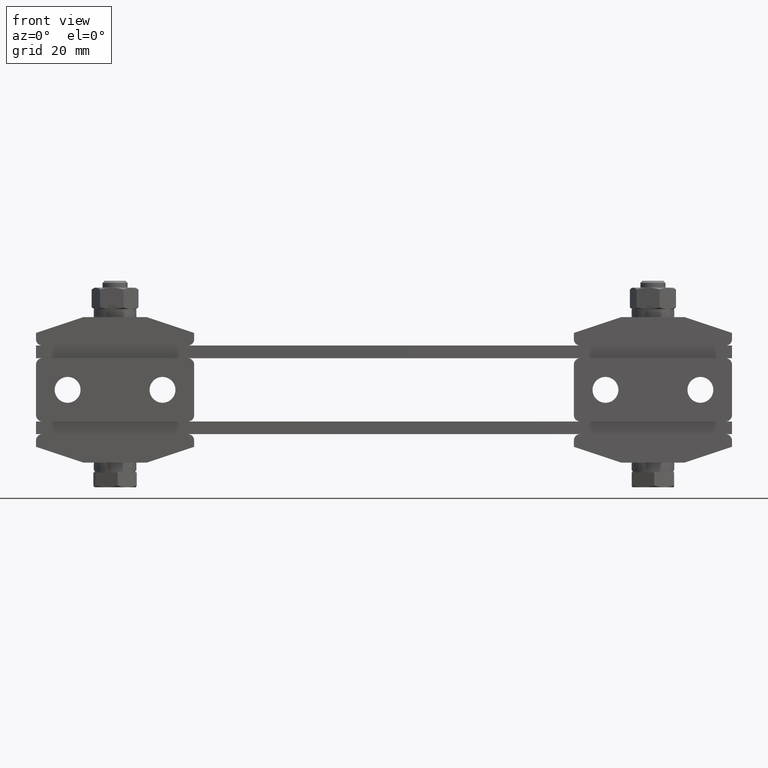
[diagram: clean part render]
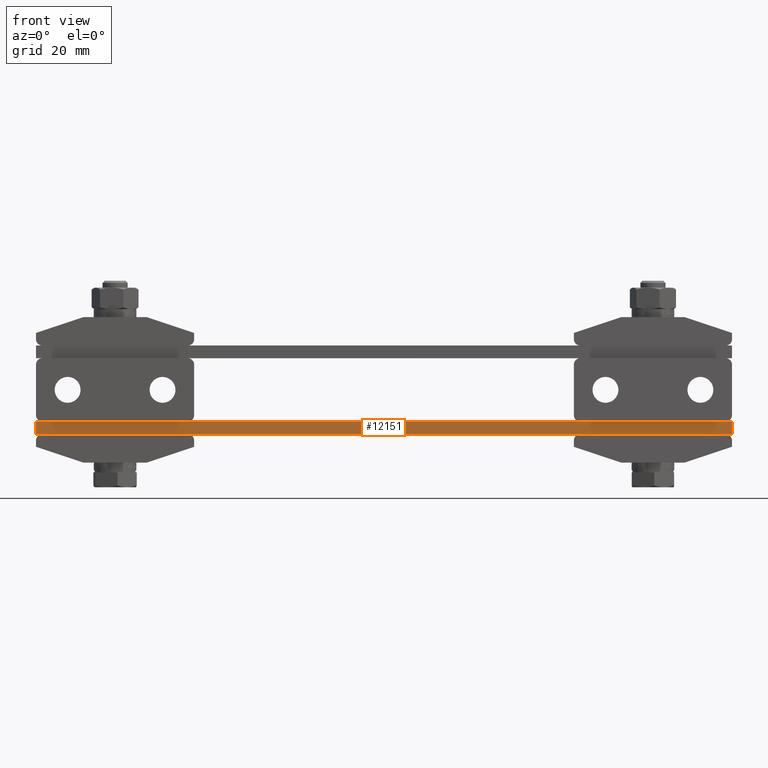
[diagram: same view with one face highlighted and labeled with its STEP entity id]
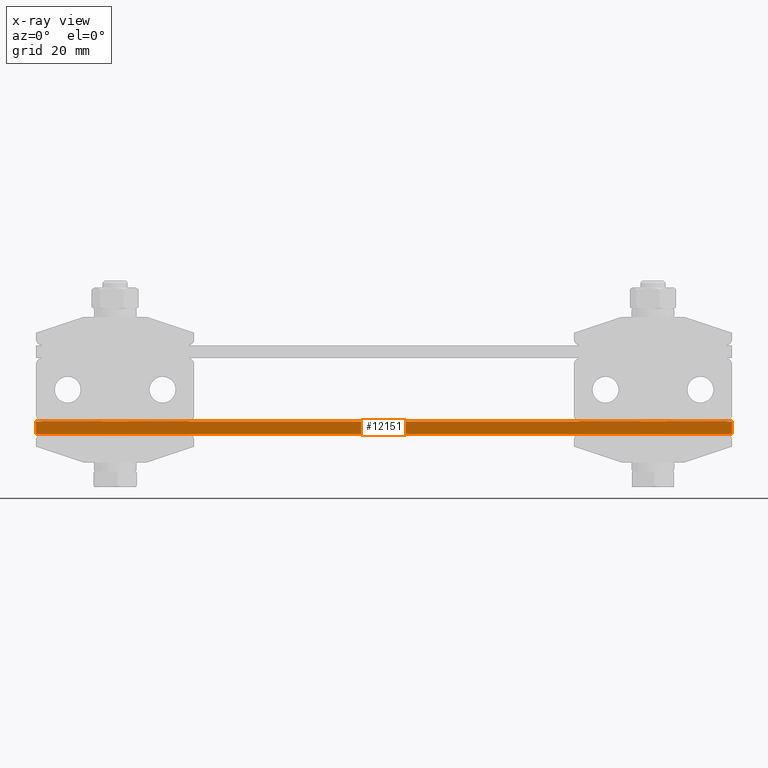
[diagram: x-ray of the same camera — body ghosted, the highlighted face saturated]
A machine part, front view. The second image highlights one B-rep face of the part: STEP entity #12151.
The next image is the same camera in x-ray: the body ghosted, the highlighted face saturated — about 0% of this face is hidden behind the body in this view.
In plain terms, the highlighted planar face has unit normal (0, 1, 0).
Its self-contained STEP definition (entity closure, byte-faithful):
#2 = ORIENTED_EDGE ( 'NONE', *, *, #4176, .F. ) ;
#489 = DIRECTION ( 'NONE',  ( 0.0000000000000000000, 0.0000000000000000000, 1.000000000000000000 ) ) ;
#1888 = CARTESIAN_POINT ( 'NONE',  ( 110.0000000000000000, -12.50000000000000000, 4.000000000000000000 ) ) ;
#3620 = ORIENTED_EDGE ( 'NONE', *, *, #5708, .T. ) ;
#4050 = VECTOR ( 'NONE', #17780, 1000.000000000000000 ) ;
#4176 = EDGE_CURVE ( 'NONE', #8098, #5868, #8974, .T. ) ;
#4789 = FACE_OUTER_BOUND ( 'NONE', #13914, .T. ) ;
#5047 = VECTOR ( 'NONE', #7665, 1000.000000000000000 ) ;
#5707 = CARTESIAN_POINT ( 'NONE',  ( 110.0000000000000000, -12.50000000000000000, 4.000000000000000000 ) ) ;
#5708 = EDGE_CURVE ( 'NONE', #12080, #16101, #19387, .T. ) ;
#5868 = VERTEX_POINT ( 'NONE', #9705 ) ;
#6965 = CARTESIAN_POINT ( 'NONE',  ( -110.0000000000000000, -12.50000000000000000, 4.000000000000000000 ) ) ;
#7430 = VECTOR ( 'NONE', #16603, 1000.000000000000000 ) ;
#7665 = DIRECTION ( 'NONE',  ( 0.0000000000000000000, 0.0000000000000000000, -1.000000000000000000 ) ) ;
#7840 = CARTESIAN_POINT ( 'NONE',  ( -110.0000000000000000, -12.50000000000000000, 4.000000000000000000 ) ) ;
#8098 = VERTEX_POINT ( 'NONE', #5707 ) ;
#8467 = CARTESIAN_POINT ( 'NONE',  ( -110.0000000000000000, -12.50000000000000000, 4.000000000000000000 ) ) ;
#8734 = AXIS2_PLACEMENT_3D ( 'NONE', #6965, #15365, #489 ) ;
#8974 = LINE ( 'NONE', #1888, #7430 ) ;
#9705 = CARTESIAN_POINT ( 'NONE',  ( 110.0000000000000000, -12.50000000000000000, 0.0000000000000000000 ) ) ;
#9897 = EDGE_CURVE ( 'NONE', #12080, #8098, #17640, .T. ) ;
#10336 = CARTESIAN_POINT ( 'NONE',  ( -110.0000000000000000, -12.50000000000000000, 0.0000000000000000000 ) ) ;
#11602 = ORIENTED_EDGE ( 'NONE', *, *, #9897, .F. ) ;
#12080 = VERTEX_POINT ( 'NONE', #8467 ) ;
#12151 = ADVANCED_FACE ( 'NONE', ( #4789 ), #18621, .F. ) ;
#12403 = ORIENTED_EDGE ( 'NONE', *, *, #16744, .T. ) ;
#13604 = VECTOR ( 'NONE', #18214, 1000.000000000000000 ) ;
#13914 = EDGE_LOOP ( 'NONE', ( #12403, #2, #11602, #3620 ) ) ;
#14321 = LINE ( 'NONE', #15882, #4050 ) ;
#15365 = DIRECTION ( 'NONE',  ( 0.0000000000000000000, 1.000000000000000000, 0.0000000000000000000 ) ) ;
#15882 = CARTESIAN_POINT ( 'NONE',  ( -110.0000000000000000, -12.50000000000000000, 0.0000000000000000000 ) ) ;
#16101 = VERTEX_POINT ( 'NONE', #10336 ) ;
#16603 = DIRECTION ( 'NONE',  ( 0.0000000000000000000, 0.0000000000000000000, -1.000000000000000000 ) ) ;
#16744 = EDGE_CURVE ( 'NONE', #16101, #5868, #14321, .T. ) ;
#17640 = LINE ( 'NONE', #7840, #13604 ) ;
#17780 = DIRECTION ( 'NONE',  ( 1.000000000000000000, 0.0000000000000000000, 0.0000000000000000000 ) ) ;
#18214 = DIRECTION ( 'NONE',  ( 1.000000000000000000, 0.0000000000000000000, 0.0000000000000000000 ) ) ;
#18621 = PLANE ( 'NONE',  #8734 ) ;
#19248 = CARTESIAN_POINT ( 'NONE',  ( -110.0000000000000000, -12.50000000000000000, 4.000000000000000000 ) ) ;
#19387 = LINE ( 'NONE', #19248, #5047 ) ;